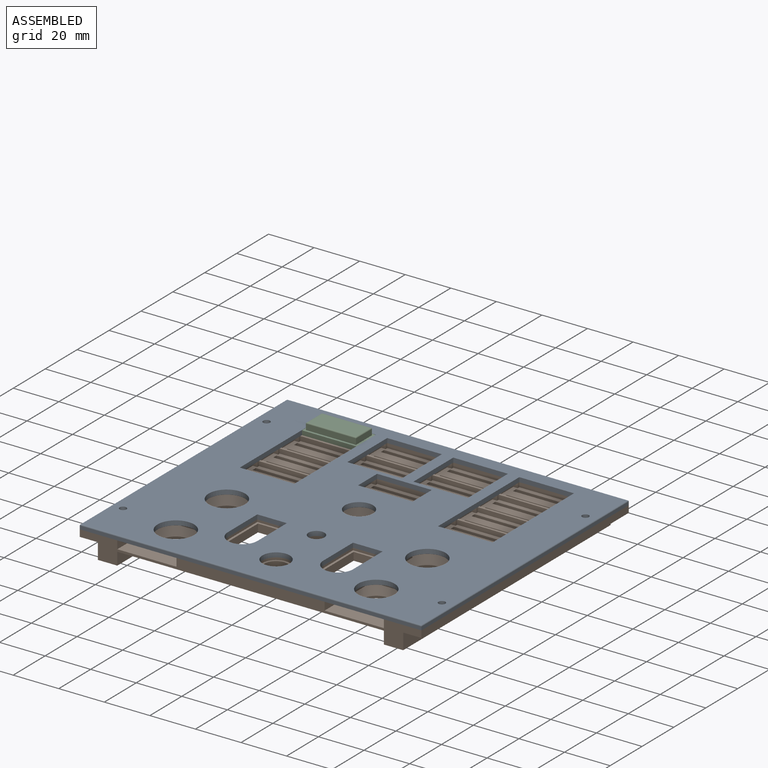
[diagram: assembled view]
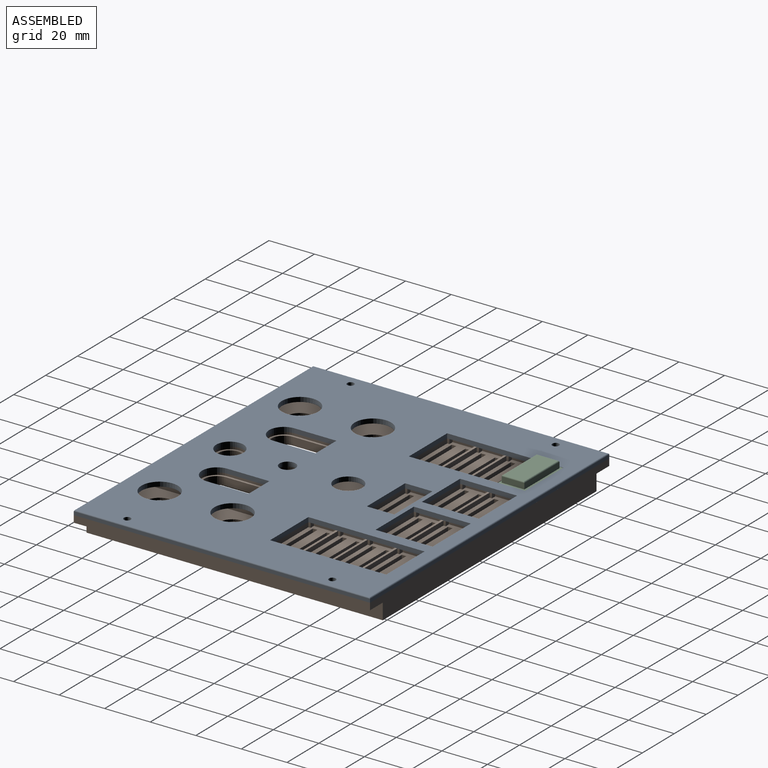
[diagram: assembled view, second angle]
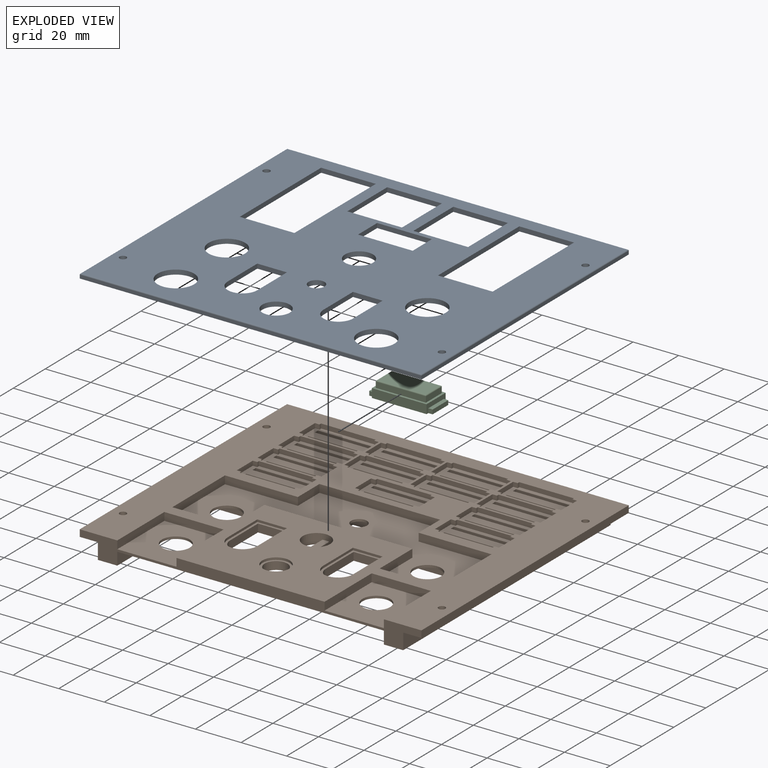
[diagram: exploded view]
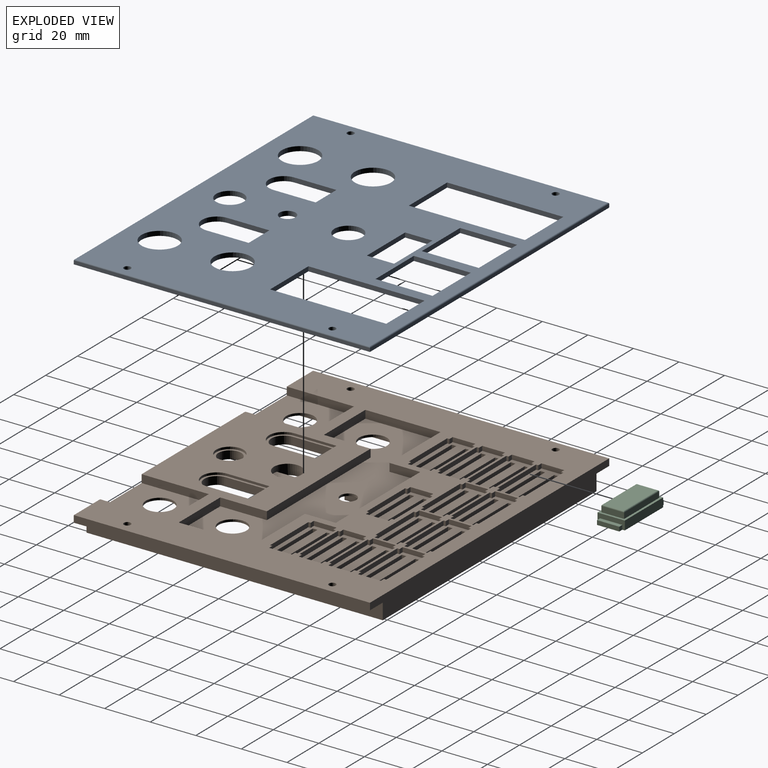
[diagram: exploded view, second angle]
ASSEMBLY  parts=3 mates=2
PART A: 49 faces, bbox 150x130x2 mm
  f0: plane 130x1.5mm, normal (1,0,0), area 195mm2, adj f1,f42,f44,f46
  f1: plane 150x1.5mm, normal (0,1,0), area 225mm2, adj f0,f2,f44,f45
  f2: plane 130x1.5mm, normal (-1,0,0), area 195mm2, adj f1,f42,f44,f47
  f3: cylinder r=6.5mm len=13mm, axis (0,0,-1), area 40.8mm2, adj f4,f24,f43,f44
  f4: plane 18.5x2mm, normal (1,0,0), area 37mm2, adj f3,f5,f43,f44
  f5: plane 13x2mm, normal (0,-1,0), area 26mm2, adj f4,f24,f43,f44
  f6: cylinder r=6.5mm len=13mm, axis (0,0,-1), area 40.8mm2, adj f7,f25,f43,f44
  f7: plane 18.5x2mm, normal (1,0,0), area 37mm2, adj f6,f8,f43,f44
  f8: plane 13x2mm, normal (0,-1,0), area 26mm2, adj f7,f25,f43,f44
  f9: plane 24x2mm, normal (0,-1,0), area 48mm2, adj f10,f26,f43,f44
  f10: plane 51x2mm, normal (-1,0,0), area 102mm2, adj f9,f11,f43,f44
  f11: plane 24x2mm, normal (0,1,0), area 48mm2, adj f10,f26,f43,f44
  f12: plane 24x2mm, normal (0,1,0), area 48mm2, adj f13,f38,f43,f44
  f13: plane 25x2mm, normal (1,0,0), area 50mm2, adj f12,f14,f43,f44
  f14: plane 24x2mm, normal (0,-1,0), area 48mm2, adj f13,f38,f43,f44
  f15: plane 12x2mm, normal (1,0,0), area 24mm2, adj f16,f39,f43,f44
  f16: plane 24x2mm, normal (0,-1,0), area 48mm2, adj f15,f17,f43,f44
  f17: plane 12x2mm, normal (-1,0,0), area 24mm2, adj f16,f39,f43,f44
  f18: plane 24x2mm, normal (0,1,0), area 48mm2, adj f19,f40,f43,f44
  f19: plane 25x2mm, normal (1,0,0), area 50mm2, adj f18,f20,f43,f44
  f20: plane 24x2mm, normal (0,-1,0), area 48mm2, adj f19,f40,f43,f44
  f21: plane 51x2mm, normal (1,0,0), area 102mm2, adj f22,f41,f43,f44
  f22: plane 24x2mm, normal (0,-1,0), area 48mm2, adj f21,f23,f43,f44
  f23: plane 51x2mm, normal (-1,0,0), area 102mm2, adj f22,f41,f43,f44
  f24: plane 18.5x2mm, normal (-1,0,0), area 37mm2, adj f3,f5,f43,f44
  f25: plane 18.5x2mm, normal (-1,0,0), area 37mm2, adj f6,f8,f43,f44
  f26: plane 51x2mm, normal (1,0,0), area 102mm2, adj f9,f11,f43,f44
  f27: cylinder r=6mm len=12mm, axis (0,0,-1), area 75.4mm2, adj f43,f44
  f28: cylinder r=3.5mm len=7mm, axis (0,0,-1), area 44mm2, adj f43,f44
  f29: cylinder r=8mm len=16mm, axis (0,0,-1), area 100.5mm2, adj f43,f44
  f30: cylinder r=8mm len=16mm, axis (0,0,-1), area 100.5mm2, adj f43,f44
  f31: cylinder r=8mm len=16mm, axis (0,0,-1), area 100.5mm2, adj f43,f44
  f32: cylinder r=8mm len=16mm, axis (0,0,-1), area 100.5mm2, adj f43,f44
  f33: cylinder r=1.5mm len=3mm, axis (0,0,-1), area 18.8mm2, adj f43,f44
  f34: cylinder r=1.5mm len=3mm, axis (0,0,-1), area 18.8mm2, adj f43,f44
  f35: cylinder r=1.5mm len=3mm, axis (0,0,-1), area 18.8mm2, adj f43,f44
  f36: cylinder r=1.5mm len=3mm, axis (0,0,-1), area 18.8mm2, adj f43,f44
  f37: cylinder r=6.15mm len=12.3mm, axis (0,0,-1), area 77.3mm2, adj f43,f44
  f38: plane 25x2mm, normal (-1,0,0), area 50mm2, adj f12,f14,f43,f44
  f39: plane 24x2mm, normal (0,1,0), area 48mm2, adj f15,f17,f43,f44
  f40: plane 25x2mm, normal (-1,0,0), area 50mm2, adj f18,f20,f43,f44
  f41: plane 24x2mm, normal (0,1,0), area 48mm2, adj f21,f23,f43,f44
  f42: plane 150x1.5mm, normal (0,-1,0), area 225mm2, adj f0,f2,f44,f48
  f43: plane 149x129mm, normal (0,0,1), area 13568.3mm2, adj f3,f4,f5,f6,f7,f8,f9,f10
  f44: plane 150x130mm, normal (0,0,-1), area 13847.3mm2, adj f0,f1,f2,f3,f4,f5,f6,f7
  f45: cylinder r=0.5mm len=150mm, axis (1,0,0), area 117.5mm2, adj f1,f43,f46,f47
  f46: cylinder r=0.5mm len=130mm, axis (0,-1,0), area 101.8mm2, adj f0,f43,f45,f48
  f47: cylinder r=0.5mm len=130mm, axis (0,1,0), area 101.8mm2, adj f2,f43,f45,f48
  f48: cylinder r=0.5mm len=150mm, axis (-1,0,0), area 117.5mm2, adj f42,f43,f46,f47
PART B: 355 faces, bbox 150x130x10 mm
  f0: plane 134x130mm, normal (0,0,-1), area 3789.5mm2, adj f15,f23,f39,f41,f215,f216,f217,f218
  f1: plane 28x12mm, normal (0,0,1), area 232mm2, adj f80,f81,f82,f83,f84,f85,f86,f87
  f2: plane 28x12mm, normal (0,0,1), area 232mm2, adj f92,f93,f94,f95,f96,f97,f98,f99
  f3: plane 28x12mm, normal (0,0,1), area 232mm2, adj f104,f105,f106,f107,f108,f109,f110,f111
  f4: plane 28x12mm, normal (0,0,1), area 232mm2, adj f116,f117,f118,f119,f120,f121,f122,f123
  f5: plane 28x12mm, normal (0,0,1), area 232mm2, adj f167,f168,f169,f170,f171,f172,f173,f174
  f6: plane 28x12mm, normal (0,0,1), area 232mm2, adj f179,f180,f181,f182,f183,f184,f185,f186
  f7: plane 28x12mm, normal (0,0,1), area 232mm2, adj f191,f192,f193,f194,f195,f196,f197,f198
  f8: plane 28x12mm, normal (0,0,1), area 232mm2, adj f203,f204,f205,f206,f207,f208,f209,f210
  f9: plane 117x46.5mm, normal (0,0,1), area 2971.7mm2, adj f16,f18,f20,f43,f44,f45,f46,f47
  f10: plane 29.5x3.5mm, normal (1,0,0), area 103.3mm2, adj f13,f15,f38,f238
  f11: plane 29.5x3.5mm, normal (-1,0,0), area 103.3mm2, adj f13,f15,f38,f238
  f12: plane 29.5x3.5mm, normal (-1,0,0), area 103.3mm2, adj f15,f38,f53,f236
  f13: plane 29.5x26mm, normal (0,0,1), area 650.1mm2, adj f10,f11,f15,f19,f238
  f14: plane 29.5x3.5mm, normal (1,0,0), area 103.3mm2, adj f15,f38,f53,f236
  f15: plane 150x10mm, normal (0,-1,0), area 562.5mm2, adj f0,f10,f11,f12,f13,f14,f21,f22
  f16: cylinder r=6.1mm len=12.2mm, axis (0,0,-1), area 38.3mm2, adj f9,f222
  f17: cylinder r=6.1mm len=12.2mm, axis (0,0,-1), area 38.3mm2, adj f53,f222
  f18: cylinder r=6.1mm len=12.2mm, axis (0,0,-1), area 38.3mm2, adj f9,f222
  f19: cylinder r=6.1mm len=12.2mm, axis (0,0,-1), area 38.3mm2, adj f13,f222
  f20: cylinder r=3.5mm len=7mm, axis (0,0,-1), area 22mm2, adj f9,f222
  f21: plane 130x3mm, normal (1,0,0), area 390mm2, adj f15,f23,f38,f40
  f22: plane 130x3mm, normal (-1,0,0), area 390mm2, adj f15,f23,f38,f42
  f23: plane 150x10mm, normal (0,1,0), area 1388mm2, adj f0,f21,f22,f38,f39,f40,f41,f42
  f24: cylinder r=1.5mm len=3mm, axis (0,0,-1), area 28.3mm2, adj f38,f42
  f25: cylinder r=1.5mm len=3mm, axis (0,0,-1), area 28.3mm2, adj f38,f42
  f26: cylinder r=6.5mm len=13mm, axis (0,0,-1), area 20.4mm2, adj f27,f32,f38,f227
  f27: plane 18.5x1mm, normal (1,0,0), area 18.5mm2, adj f26,f28,f38,f227
  f28: plane 13x1mm, normal (0,-1,0), area 13mm2, adj f27,f32,f38,f227
  f29: cylinder r=6.5mm len=13mm, axis (0,0,-1), area 20.4mm2, adj f30,f33,f38,f232
  f30: plane 18.5x1mm, normal (1,0,0), area 18.5mm2, adj f29,f31,f38,f232
  f31: plane 13x1mm, normal (0,-1,0), area 13mm2, adj f30,f33,f38,f232
  f32: plane 18.5x1mm, normal (-1,0,0), area 18.5mm2, adj f26,f28,f38,f227
  f33: plane 18.5x1mm, normal (-1,0,0), area 18.5mm2, adj f29,f31,f38,f232
  f34: cylinder r=6mm len=12mm, axis (0,0,-1), area 37.7mm2, adj f38,f234
  f35: cylinder r=6mm len=12mm, axis (0,0,-1), area 157.5mm2, adj f38,f222,f352,f353,f354
  f36: cylinder r=1.5mm len=3mm, axis (0,0,-1), area 28.3mm2, adj f38,f40
  f37: cylinder r=1.5mm len=3mm, axis (0,0,-1), area 28.3mm2, adj f38,f40
  f38: plane 150x130mm, normal (0,0,1), area 9589.8mm2, adj f10,f11,f12,f14,f15,f21,f22,f23
  f39: plane 130x7mm, normal (1,0,0), area 910mm2, adj f0,f15,f23,f40
  f40: plane 130x8mm, normal (0,0,-1), area 1025.9mm2, adj f15,f21,f23,f36,f37,f39
  f41: plane 130x7mm, normal (-1,0,0), area 910mm2, adj f0,f15,f23,f42
  f42: plane 130x8mm, normal (0,0,-1), area 1025.9mm2, adj f15,f22,f23,f24,f25,f41
  f43: plane 65x3.5mm, normal (0,1,0), area 227.5mm2, adj f9,f38,f44,f52
  f44: plane 20.5x3.5mm, normal (1,0,0), area 71.8mm2, adj f9,f38,f43,f237
  f45: plane 33x3.5mm, normal (-1,0,0), area 115.5mm2, adj f9,f38,f46,f237
  f46: plane 32x3.5mm, normal (0,-1,0), area 112mm2, adj f9,f38,f45,f47
  f47: plane 13.5x3.5mm, normal (-1,0,0), area 47.2mm2, adj f9,f38,f46,f48
  f48: plane 53x3.5mm, normal (0,-1,0), area 185.5mm2, adj f9,f38,f47,f49
  f49: plane 13.5x3.5mm, normal (1,0,0), area 47.2mm2, adj f9,f38,f48,f50
  f50: plane 32x3.5mm, normal (0,-1,0), area 112mm2, adj f9,f38,f49,f51
  f51: plane 33x3.5mm, normal (1,0,0), area 115.5mm2, adj f9,f38,f50,f235
  f52: plane 20.5x3.5mm, normal (-1,0,0), area 71.8mm2, adj f9,f38,f43,f235
  f53: plane 29.5x26mm, normal (0,0,1), area 650.1mm2, adj f12,f14,f15,f17,f236
  f54: plane 2x1mm, normal (1,0,0), area 2mm2, adj f38,f55,f65,f66
  f55: plane 2x2mm, normal (0,-1,0), area 4mm2, adj f38,f54,f56,f66
  f56: plane 10x2mm, normal (1,0,0), area 20mm2, adj f38,f55,f57,f66
  f57: plane 2x2mm, normal (0,1,0), area 4mm2, adj f38,f56,f58,f66
  f58: plane 2x1mm, normal (1,0,0), area 2mm2, adj f38,f57,f59,f66
  f59: plane 24x2mm, normal (0,1,0), area 48mm2, adj f38,f58,f60,f66
  f60: plane 2x1mm, normal (-1,0,0), area 2mm2, adj f38,f59,f61,f66
  f61: plane 2x2mm, normal (0,1,0), area 4mm2, adj f38,f60,f62,f66
  f62: plane 10x2mm, normal (-1,0,0), area 20mm2, adj f38,f61,f63,f66
  f63: plane 2x2mm, normal (0,-1,0), area 4mm2, adj f38,f62,f64,f66
  f64: plane 2x1mm, normal (-1,0,0), area 2mm2, adj f38,f63,f65,f66
  f65: plane 24x2mm, normal (0,-1,0), area 48mm2, adj f38,f54,f64,f66
  f66: plane 28x12mm, normal (0,0,1), area 232mm2, adj f54,f55,f56,f57,f58,f59,f60,f61
  f67: plane 2x2mm, normal (0,1,0), area 4mm2, adj f38,f68,f78,f79
  f68: plane 2x1mm, normal (1,0,0), area 2mm2, adj f38,f67,f69,f79
  f69: plane 24x2mm, normal (0,1,0), area 48mm2, adj f38,f68,f70,f79
  f70: plane 2x1mm, normal (-1,0,0), area 2mm2, adj f38,f69,f71,f79
  f71: plane 2x2mm, normal (0,1,0), area 4mm2, adj f38,f70,f72,f79
  f72: plane 10x2mm, normal (-1,0,0), area 20mm2, adj f38,f71,f73,f79
  f73: plane 2x2mm, normal (0,-1,0), area 4mm2, adj f38,f72,f74,f79
  f74: plane 2x1mm, normal (-1,0,0), area 2mm2, adj f38,f73,f75,f79
  f75: plane 24x2mm, normal (0,-1,0), area 48mm2, adj f38,f74,f76,f79
  f76: plane 2x1mm, normal (1,0,0), area 2mm2, adj f38,f75,f77,f79
  f77: plane 2x2mm, normal (0,-1,0), area 4mm2, adj f38,f76,f78,f79
  f78: plane 10x2mm, normal (1,0,0), area 20mm2, adj f38,f67,f77,f79
  f79: plane 28x12mm, normal (0,0,1), area 232mm2, adj f67,f68,f69,f70,f71,f72,f73,f74
  f80: plane 2x2mm, normal (0,1,0), area 4mm2, adj f1,f38,f81,f91
  f81: plane 2x1mm, normal (1,0,0), area 2mm2, adj f1,f38,f80,f82
  f82: plane 24x2mm, normal (0,1,0), area 48mm2, adj f1,f38,f81,f83
  f83: plane 2x1mm, normal (-1,0,0), area 2mm2, adj f1,f38,f82,f84
  f84: plane 2x2mm, normal (0,1,0), area 4mm2, adj f1,f38,f83,f85
  f85: plane 10x2mm, normal (-1,0,0), area 20mm2, adj f1,f38,f84,f86
  f86: plane 2x2mm, normal (0,-1,0), area 4mm2, adj f1,f38,f85,f87
  f87: plane 2x1mm, normal (-1,0,0), area 2mm2, adj f1,f38,f86,f88
  f88: plane 24x2mm, normal (0,-1,0), area 48mm2, adj f1,f38,f87,f89
  f89: plane 2x1mm, normal (1,0,0), area 2mm2, adj f1,f38,f88,f90
  f90: plane 2x2mm, normal (0,-1,0), area 4mm2, adj f1,f38,f89,f91
  f91: plane 10x2mm, normal (1,0,0), area 20mm2, adj f1,f38,f80,f90
  f92: plane 2x2mm, normal (0,-1,0), area 4mm2, adj f2,f38,f93,f103
  f93: plane 2x1mm, normal (-1,0,0), area 2mm2, adj f2,f38,f92,f94
  f94: plane 24x2mm, normal (0,-1,0), area 48mm2, adj f2,f38,f93,f95
  f95: plane 2x1mm, normal (1,0,0), area 2mm2, adj f2,f38,f94,f96
  f96: plane 2x2mm, normal (0,-1,0), area 4mm2, adj f2,f38,f95,f97
  f97: plane 10x2mm, normal (1,0,0), area 20mm2, adj f2,f38,f96,f98
  f98: plane 2x2mm, normal (0,1,0), area 4mm2, adj f2,f38,f97,f99
  f99: plane 2x1mm, normal (1,0,0), area 2mm2, adj f2,f38,f98,f100
  f100: plane 24x2mm, normal (0,1,0), area 48mm2, adj f2,f38,f99,f101
  f101: plane 2x1mm, normal (-1,0,0), area 2mm2, adj f2,f38,f100,f102
  f102: plane 2x2mm, normal (0,1,0), area 4mm2, adj f2,f38,f101,f103
  f103: plane 10x2mm, normal (-1,0,0), area 20mm2, adj f2,f38,f92,f102
  f104: plane 2x2mm, normal (0,1,0), area 4mm2, adj f3,f38,f105,f115
  f105: plane 2x1mm, normal (1,0,0), area 2mm2, adj f3,f38,f104,f106
  f106: plane 24x2mm, normal (0,1,0), area 48mm2, adj f3,f38,f105,f107
  f107: plane 2x1mm, normal (-1,0,0), area 2mm2, adj f3,f38,f106,f108
  f108: plane 2x2mm, normal (0,1,0), area 4mm2, adj f3,f38,f107,f109
  f109: plane 10x2mm, normal (-1,0,0), area 20mm2, adj f3,f38,f108,f110
  f110: plane 2x2mm, normal (0,-1,0), area 4mm2, adj f3,f38,f109,f111
  f111: plane 2x1mm, normal (-1,0,0), area 2mm2, adj f3,f38,f110,f112
  f112: plane 24x2mm, normal (0,-1,0), area 48mm2, adj f3,f38,f111,f113
  f113: plane 2x1mm, normal (1,0,0), area 2mm2, adj f3,f38,f112,f114
  f114: plane 2x2mm, normal (0,-1,0), area 4mm2, adj f3,f38,f113,f115
  f115: plane 10x2mm, normal (1,0,0), area 20mm2, adj f3,f38,f104,f114
  f116: plane 2x2mm, normal (0,1,0), area 4mm2, adj f4,f38,f117,f127
  f117: plane 2x1mm, normal (1,0,0), area 2mm2, adj f4,f38,f116,f118
  f118: plane 24x2mm, normal (0,1,0), area 48mm2, adj f4,f38,f117,f119
  f119: plane 2x1mm, normal (-1,0,0), area 2mm2, adj f4,f38,f118,f120
  f120: plane 2x2mm, normal (0,1,0), area 4mm2, adj f4,f38,f119,f121
  f121: plane 10x2mm, normal (-1,0,0), area 20mm2, adj f4,f38,f120,f122
  f122: plane 2x2mm, normal (0,-1,0), area 4mm2, adj f4,f38,f121,f123
  f123: plane 2x1mm, normal (-1,0,0), area 2mm2, adj f4,f38,f122,f124
  f124: plane 24x2mm, normal (0,-1,0), area 48mm2, adj f4,f38,f123,f125
  f125: plane 2x1mm, normal (1,0,0), area 2mm2, adj f4,f38,f124,f126
  f126: plane 2x2mm, normal (0,-1,0), area 4mm2, adj f4,f38,f125,f127
  f127: plane 10x2mm, normal (1,0,0), area 20mm2, adj f4,f38,f116,f126
  f128: plane 2x2mm, normal (0,1,0), area 4mm2, adj f38,f129,f139,f140
  f129: plane 2x1mm, normal (1,0,0), area 2mm2, adj f38,f128,f130,f140
  f130: plane 24x2mm, normal (0,1,0), area 48mm2, adj f38,f129,f131,f140
  f131: plane 2x1mm, normal (-1,0,0), area 2mm2, adj f38,f130,f132,f140
  f132: plane 2x2mm, normal (0,1,0), area 4mm2, adj f38,f131,f133,f140
  f133: plane 10x2mm, normal (-1,0,0), area 20mm2, adj f38,f132,f134,f140
  f134: plane 2x2mm, normal (0,-1,0), area 4mm2, adj f38,f133,f135,f140
  f135: plane 2x1mm, normal (-1,0,0), area 2mm2, adj f38,f134,f136,f140
  f136: plane 24x2mm, normal (0,-1,0), area 48mm2, adj f38,f135,f137,f140
  f137: plane 2x1mm, normal (1,0,0), area 2mm2, adj f38,f136,f138,f140
  f138: plane 2x2mm, normal (0,-1,0), area 4mm2, adj f38,f137,f139,f140
  f139: plane 10x2mm, normal (1,0,0), area 20mm2, adj f38,f128,f138,f140
  f140: plane 28x12mm, normal (0,0,1), area 232mm2, adj f128,f129,f130,f131,f132,f133,f134,f135
  f141: plane 2x2mm, normal (0,1,0), area 4mm2, adj f38,f142,f152,f153
  f142: plane 2x1mm, normal (1,0,0), area 2mm2, adj f38,f141,f143,f153
  f143: plane 24x2mm, normal (0,1,0), area 48mm2, adj f38,f142,f144,f153
  f144: plane 2x1mm, normal (-1,0,0), area 2mm2, adj f38,f143,f145,f153
  f145: plane 2x2mm, normal (0,1,0), area 4mm2, adj f38,f144,f146,f153
  f146: plane 10x2mm, normal (-1,0,0), area 20mm2, adj f38,f145,f147,f153
  f147: plane 2x2mm, normal (0,-1,0), area 4mm2, adj f38,f146,f148,f153
  f148: plane 2x1mm, normal (-1,0,0), area 2mm2, adj f38,f147,f149,f153
  f149: plane 24x2mm, normal (0,-1,0), area 48mm2, adj f38,f148,f150,f153
  f150: plane 2x1mm, normal (1,0,0), area 2mm2, adj f38,f149,f151,f153
  f151: plane 2x2mm, normal (0,-1,0), area 4mm2, adj f38,f150,f152,f153
  f152: plane 10x2mm, normal (1,0,0), area 20mm2, adj f38,f141,f151,f153
  f153: plane 28x12mm, normal (0,0,1), area 232mm2, adj f141,f142,f143,f144,f145,f146,f147,f148
  f154: plane 2x2mm, normal (0,1,0), area 4mm2, adj f38,f155,f165,f166
  f155: plane 2x1mm, normal (1,0,0), area 2mm2, adj f38,f154,f156,f166
  f156: plane 24x2mm, normal (0,1,0), area 48mm2, adj f38,f155,f157,f166
  f157: plane 2x1mm, normal (-1,0,0), area 2mm2, adj f38,f156,f158,f166
  f158: plane 2x2mm, normal (0,1,0), area 4mm2, adj f38,f157,f159,f166
  f159: plane 10x2mm, normal (-1,0,0), area 20mm2, adj f38,f158,f160,f166
  f160: plane 2x2mm, normal (0,-1,0), area 4mm2, adj f38,f159,f161,f166
  f161: plane 2x1mm, normal (-1,0,0), area 2mm2, adj f38,f160,f162,f166
  f162: plane 24x2mm, normal (0,-1,0), area 48mm2, adj f38,f161,f163,f166
  f163: plane 2x1mm, normal (1,0,0), area 2mm2, adj f38,f162,f164,f166
  f164: plane 2x2mm, normal (0,-1,0), area 4mm2, adj f38,f163,f165,f166
  f165: plane 10x2mm, normal (1,0,0), area 20mm2, adj f38,f154,f164,f166
  f166: plane 28x12mm, normal (0,0,1), area 232mm2, adj f154,f155,f156,f157,f158,f159,f160,f161
  f167: plane 2x2mm, normal (0,1,0), area 4mm2, adj f5,f38,f168,f178
  f168: plane 2x1mm, normal (1,0,0), area 2mm2, adj f5,f38,f167,f169
  f169: plane 24x2mm, normal (0,1,0), area 48mm2, adj f5,f38,f168,f170
  f170: plane 2x1mm, normal (-1,0,0), area 2mm2, adj f5,f38,f169,f171
  f171: plane 2x2mm, normal (0,1,0), area 4mm2, adj f5,f38,f170,f172
  f172: plane 10x2mm, normal (-1,0,0), area 20mm2, adj f5,f38,f171,f173
  f173: plane 2x2mm, normal (0,-1,0), area 4mm2, adj f5,f38,f172,f174
  f174: plane 2x1mm, normal (-1,0,0), area 2mm2, adj f5,f38,f173,f175
  f175: plane 24x2mm, normal (0,-1,0), area 48mm2, adj f5,f38,f174,f176
  f176: plane 2x1mm, normal (1,0,0), area 2mm2, adj f5,f38,f175,f177
  f177: plane 2x2mm, normal (0,-1,0), area 4mm2, adj f5,f38,f176,f178
  f178: plane 10x2mm, normal (1,0,0), area 20mm2, adj f5,f38,f167,f177
  f179: plane 2x2mm, normal (0,-1,0), area 4mm2, adj f6,f38,f180,f190
  f180: plane 2x1mm, normal (-1,0,0), area 2mm2, adj f6,f38,f179,f181
  f181: plane 24x2mm, normal (0,-1,0), area 48mm2, adj f6,f38,f180,f182
  f182: plane 2x1mm, normal (1,0,0), area 2mm2, adj f6,f38,f181,f183
  f183: plane 2x2mm, normal (0,-1,0), area 4mm2, adj f6,f38,f182,f184
  f184: plane 10x2mm, normal (1,0,0), area 20mm2, adj f6,f38,f183,f185
  f185: plane 2x2mm, normal (0,1,0), area 4mm2, adj f6,f38,f184,f186
  f186: plane 2x1mm, normal (1,0,0), area 2mm2, adj f6,f38,f185,f187
  f187: plane 24x2mm, normal (0,1,0), area 48mm2, adj f6,f38,f186,f188
  f188: plane 2x1mm, normal (-1,0,0), area 2mm2, adj f6,f38,f187,f189
  f189: plane 2x2mm, normal (0,1,0), area 4mm2, adj f6,f38,f188,f190
  f190: plane 10x2mm, normal (-1,0,0), area 20mm2, adj f6,f38,f179,f189
  f191: plane 2x2mm, normal (0,1,0), area 4mm2, adj f7,f38,f192,f202
  f192: plane 2x1mm, normal (1,0,0), area 2mm2, adj f7,f38,f191,f193
  f193: plane 24x2mm, normal (0,1,0), area 48mm2, adj f7,f38,f192,f194
  f194: plane 2x1mm, normal (-1,0,0), area 2mm2, adj f7,f38,f193,f195
  f195: plane 2x2mm, normal (0,1,0), area 4mm2, adj f7,f38,f194,f196
  f196: plane 10x2mm, normal (-1,0,0), area 20mm2, adj f7,f38,f195,f197
  f197: plane 2x2mm, normal (0,-1,0), area 4mm2, adj f7,f38,f196,f198
  f198: plane 2x1mm, normal (-1,0,0), area 2mm2, adj f7,f38,f197,f199
  f199: plane 24x2mm, normal (0,-1,0), area 48mm2, adj f7,f38,f198,f200
  f200: plane 2x1mm, normal (1,0,0), area 2mm2, adj f7,f38,f199,f201
  f201: plane 2x2mm, normal (0,-1,0), area 4mm2, adj f7,f38,f200,f202
  f202: plane 10x2mm, normal (1,0,0), area 20mm2, adj f7,f38,f191,f201
  f203: plane 2x2mm, normal (0,-1,0), area 4mm2, adj f8,f38,f204,f214
  f204: plane 2x1mm, normal (-1,0,0), area 2mm2, adj f8,f38,f203,f205
  f205: plane 24x2mm, normal (0,-1,0), area 48mm2, adj f8,f38,f204,f206
  f206: plane 2x1mm, normal (1,0,0), area 2mm2, adj f8,f38,f205,f207
  f207: plane 2x2mm, normal (0,-1,0), area 4mm2, adj f8,f38,f206,f208
  f208: plane 10x2mm, normal (1,0,0), area 20mm2, adj f8,f38,f207,f209
  f209: plane 2x2mm, normal (0,1,0), area 4mm2, adj f8,f38,f208,f210
  f210: plane 2x1mm, normal (1,0,0), area 2mm2, adj f8,f38,f209,f211
  f211: plane 24x2mm, normal (0,1,0), area 48mm2, adj f8,f38,f210,f212
  f212: plane 2x1mm, normal (-1,0,0), area 2mm2, adj f8,f38,f211,f213
  f213: plane 2x2mm, normal (0,1,0), area 4mm2, adj f8,f38,f212,f214
  f214: plane 10x2mm, normal (-1,0,0), area 20mm2, adj f8,f38,f203,f213
  f215: plane 49.5x5.5mm, normal (0,-1,0), area 272.2mm2, adj f0,f216,f221,f222
  f216: plane 17x5.5mm, normal (-1,0,0), area 93.5mm2, adj f0,f215,f217,f222
  f217: plane 18x5.5mm, normal (0,-1,0), area 99mm2, adj f0,f216,f218,f222
  f218: plane 17x5.5mm, normal (1,0,0), area 93.5mm2, adj f0,f217,f219,f222
  f219: plane 49.5x5.5mm, normal (0,-1,0), area 272.2mm2, adj f0,f218,f220,f222
  f220: plane 60x5.5mm, normal (1,0,0), area 330mm2, adj f0,f15,f219,f222
  f221: plane 60x5.5mm, normal (-1,0,0), area 330mm2, adj f0,f15,f215,f222
  f222: plane 117x77mm, normal (0,0,-1), area 6183.9mm2, adj f15,f16,f17,f18,f19,f20,f35,f215
  f223: cylinder r=5.5mm len=11mm, axis (0,0,-1), area 60.5mm2, adj f222,f224,f226,f227
  f224: plane 17.5x3.5mm, normal (-1,0,0), area 61.3mm2, adj f222,f223,f225,f227
  f225: plane 11x3.5mm, normal (0,-1,0), area 38.5mm2, adj f222,f224,f226,f227
  f226: plane 17.5x3.5mm, normal (1,0,0), area 61.3mm2, adj f222,f223,f225,f227
  f227: plane 25x13mm, normal (0,0,1), area 66.8mm2, adj f26,f27,f28,f32,f223,f224,f225,f226
  f228: cylinder r=5.5mm len=11mm, axis (0,0,-1), area 60.5mm2, adj f222,f229,f231,f232
  f229: plane 17.5x3.5mm, normal (-1,0,0), area 61.3mm2, adj f222,f228,f230,f232
  f230: plane 11x3.5mm, normal (0,-1,0), area 38.5mm2, adj f222,f229,f231,f232
  f231: plane 17.5x3.5mm, normal (1,0,0), area 61.3mm2, adj f222,f228,f230,f232
  f232: plane 25x13mm, normal (0,0,1), area 66.8mm2, adj f29,f30,f31,f33,f228,f229,f230,f231
  f233: cylinder r=5mm len=10mm, axis (0,0,-1), area 110mm2, adj f222,f234
  f234: plane 12x12mm, normal (0,0,1), area 34.6mm2, adj f34,f233
  f235: plane 26x3.5mm, normal (0,1,0), area 91mm2, adj f9,f38,f51,f52
  f236: plane 26x3.5mm, normal (0,-1,0), area 91mm2, adj f12,f14,f38,f53
  f237: plane 26x3.5mm, normal (0,1,0), area 91mm2, adj f9,f38,f44,f45
  f238: plane 26x3.5mm, normal (0,-1,0), area 91mm2, adj f10,f11,f13,f38
  f239: plane 24x2mm, normal (0,-1,0), area 48mm2, adj f8,f240,f242,f343
  f240: plane 2x2mm, normal (1,0,0), area 4mm2, adj f8,f239,f241,f343
  f241: plane 24x2mm, normal (0,1,0), area 48mm2, adj f8,f240,f242,f343
  f242: plane 2x2mm, normal (-1,0,0), area 4mm2, adj f8,f239,f241,f343
  f243: plane 24x2mm, normal (0,-1,0), area 48mm2, adj f8,f244,f246,f343
  f244: plane 2x2mm, normal (1,0,0), area 4mm2, adj f8,f243,f245,f343
  f245: plane 24x2mm, normal (0,1,0), area 48mm2, adj f8,f244,f246,f343
  f246: plane 2x2mm, normal (-1,0,0), area 4mm2, adj f8,f243,f245,f343
  f247: plane 24x2mm, normal (0,-1,0), area 48mm2, adj f7,f248,f250,f343
  f248: plane 2x2mm, normal (1,0,0), area 4mm2, adj f7,f247,f249,f343
  f249: plane 24x2mm, normal (0,1,0), area 48mm2, adj f7,f248,f250,f343
  f250: plane 2x2mm, normal (-1,0,0), area 4mm2, adj f7,f247,f249,f343
  f251: plane 2x2mm, normal (1,0,0), area 4mm2, adj f7,f252,f254,f343
  f252: plane 24x2mm, normal (0,1,0), area 48mm2, adj f7,f251,f253,f343
  f253: plane 2x2mm, normal (-1,0,0), area 4mm2, adj f7,f252,f254,f343
  f254: plane 24x2mm, normal (0,-1,0), area 48mm2, adj f7,f251,f253,f343
  f255: plane 24x2mm, normal (0,-1,0), area 48mm2, adj f6,f256,f258,f343
  f256: plane 2x2mm, normal (1,0,0), area 4mm2, adj f6,f255,f257,f343
  f257: plane 24x2mm, normal (0,1,0), area 48mm2, adj f6,f256,f258,f343
  f258: plane 2x2mm, normal (-1,0,0), area 4mm2, adj f6,f255,f257,f343
  f259: plane 24x2mm, normal (0,-1,0), area 48mm2, adj f6,f260,f262,f343
  f260: plane 2x2mm, normal (1,0,0), area 4mm2, adj f6,f259,f261,f343
  f261: plane 24x2mm, normal (0,1,0), area 48mm2, adj f6,f260,f262,f343
  f262: plane 2x2mm, normal (-1,0,0), area 4mm2, adj f6,f259,f261,f343
  f263: plane 2x2mm, normal (1,0,0), area 4mm2, adj f5,f264,f266,f343
  f264: plane 24x2mm, normal (0,1,0), area 48mm2, adj f5,f263,f265,f343
  f265: plane 2x2mm, normal (-1,0,0), area 4mm2, adj f5,f264,f266,f343
  f266: plane 24x2mm, normal (0,-1,0), area 48mm2, adj f5,f263,f265,f343
  f267: plane 24x2mm, normal (0,-1,0), area 48mm2, adj f5,f268,f270,f343
  f268: plane 2x2mm, normal (1,0,0), area 4mm2, adj f5,f267,f269,f343
  f269: plane 24x2mm, normal (0,1,0), area 48mm2, adj f5,f268,f270,f343
  f270: plane 2x2mm, normal (-1,0,0), area 4mm2, adj f5,f267,f269,f343
  f271: plane 2x2mm, normal (1,0,0), area 4mm2, adj f166,f272,f274,f343
  f272: plane 24x2mm, normal (0,1,0), area 48mm2, adj f166,f271,f273,f343
  f273: plane 2x2mm, normal (-1,0,0), area 4mm2, adj f166,f272,f274,f343
  f274: plane 24x2mm, normal (0,-1,0), area 48mm2, adj f166,f271,f273,f343
  f275: plane 2x2mm, normal (1,0,0), area 4mm2, adj f166,f276,f278,f343
  f276: plane 24x2mm, normal (0,1,0), area 48mm2, adj f166,f275,f277,f343
  f277: plane 2x2mm, normal (-1,0,0), area 4mm2, adj f166,f276,f278,f343
  f278: plane 24x2mm, normal (0,-1,0), area 48mm2, adj f166,f275,f277,f343
  f279: plane 2x2mm, normal (1,0,0), area 4mm2, adj f153,f280,f282,f343
  f280: plane 24x2mm, normal (0,1,0), area 48mm2, adj f153,f279,f281,f343
  f281: plane 2x2mm, normal (-1,0,0), area 4mm2, adj f153,f280,f282,f343
  f282: plane 24x2mm, normal (0,-1,0), area 48mm2, adj f153,f279,f281,f343
  f283: plane 2x2mm, normal (1,0,0), area 4mm2, adj f153,f284,f286,f343
  f284: plane 24x2mm, normal (0,1,0), area 48mm2, adj f153,f283,f285,f343
  f285: plane 2x2mm, normal (-1,0,0), area 4mm2, adj f153,f284,f286,f343
  f286: plane 24x2mm, normal (0,-1,0), area 48mm2, adj f153,f283,f285,f343
  f287: plane 2x2mm, normal (1,0,0), area 4mm2, adj f140,f288,f290,f343
  f288: plane 24x2mm, normal (0,1,0), area 48mm2, adj f140,f287,f289,f343
  f289: plane 2x2mm, normal (-1,0,0), area 4mm2, adj f140,f288,f290,f343
  f290: plane 24x2mm, normal (0,-1,0), area 48mm2, adj f140,f287,f289,f343
  f291: plane 2x2mm, normal (1,0,0), area 4mm2, adj f140,f292,f294,f343
  f292: plane 24x2mm, normal (0,1,0), area 48mm2, adj f140,f291,f293,f343
  f293: plane 2x2mm, normal (-1,0,0), area 4mm2, adj f140,f292,f294,f343
  f294: plane 24x2mm, normal (0,-1,0), area 48mm2, adj f140,f291,f293,f343
  f295: plane 24x2mm, normal (0,-1,0), area 48mm2, adj f4,f296,f298,f343
  f296: plane 2x2mm, normal (1,0,0), area 4mm2, adj f4,f295,f297,f343
  f297: plane 24x2mm, normal (0,1,0), area 48mm2, adj f4,f296,f298,f343
  f298: plane 2x2mm, normal (-1,0,0), area 4mm2, adj f4,f295,f297,f343
  f299: plane 2x2mm, normal (1,0,0), area 4mm2, adj f4,f300,f302,f343
  f300: plane 24x2mm, normal (0,1,0), area 48mm2, adj f4,f299,f301,f343
  f301: plane 2x2mm, normal (-1,0,0), area 4mm2, adj f4,f300,f302,f343
  f302: plane 24x2mm, normal (0,-1,0), area 48mm2, adj f4,f299,f301,f343
  f303: plane 24x2mm, normal (0,-1,0), area 48mm2, adj f3,f304,f306,f343
  f304: plane 2x2mm, normal (1,0,0), area 4mm2, adj f3,f303,f305,f343
  f305: plane 24x2mm, normal (0,1,0), area 48mm2, adj f3,f304,f306,f343
  f306: plane 2x2mm, normal (-1,0,0), area 4mm2, adj f3,f303,f305,f343
  f307: plane 2x2mm, normal (1,0,0), area 4mm2, adj f3,f308,f310,f343
  f308: plane 24x2mm, normal (0,1,0), area 48mm2, adj f3,f307,f309,f343
  f309: plane 2x2mm, normal (-1,0,0), area 4mm2, adj f3,f308,f310,f343
  f310: plane 24x2mm, normal (0,-1,0), area 48mm2, adj f3,f307,f309,f343
  f311: plane 24x2mm, normal (0,-1,0), area 48mm2, adj f2,f312,f314,f343
  f312: plane 2x2mm, normal (1,0,0), area 4mm2, adj f2,f311,f313,f343
  f313: plane 24x2mm, normal (0,1,0), area 48mm2, adj f2,f312,f314,f343
  f314: plane 2x2mm, normal (-1,0,0), area 4mm2, adj f2,f311,f313,f343
  f315: plane 24x2mm, normal (0,-1,0), area 48mm2, adj f2,f316,f318,f343
  f316: plane 2x2mm, normal (1,0,0), area 4mm2, adj f2,f315,f317,f343
  f317: plane 24x2mm, normal (0,1,0), area 48mm2, adj f2,f316,f318,f343
  f318: plane 2x2mm, normal (-1,0,0), area 4mm2, adj f2,f315,f317,f343
  f319: plane 24x2mm, normal (0,-1,0), area 48mm2, adj f1,f320,f322,f343
  f320: plane 2x2mm, normal (1,0,0), area 4mm2, adj f1,f319,f321,f343
  f321: plane 24x2mm, normal (0,1,0), area 48mm2, adj f1,f320,f322,f343
  f322: plane 2x2mm, normal (-1,0,0), area 4mm2, adj f1,f319,f321,f343
  f323: plane 2x2mm, normal (1,0,0), area 4mm2, adj f1,f324,f326,f343
  f324: plane 24x2mm, normal (0,1,0), area 48mm2, adj f1,f323,f325,f343
  f325: plane 2x2mm, normal (-1,0,0), area 4mm2, adj f1,f324,f326,f343
  f326: plane 24x2mm, normal (0,-1,0), area 48mm2, adj f1,f323,f325,f343
  f327: plane 2x2mm, normal (1,0,0), area 4mm2, adj f79,f328,f330,f343
  f328: plane 24x2mm, normal (0,1,0), area 48mm2, adj f79,f327,f329,f343
  f329: plane 2x2mm, normal (-1,0,0), area 4mm2, adj f79,f328,f330,f343
  f330: plane 24x2mm, normal (0,-1,0), area 48mm2, adj f79,f327,f329,f343
  f331: plane 2x2mm, normal (1,0,0), area 4mm2, adj f79,f332,f334,f343
  f332: plane 24x2mm, normal (0,1,0), area 48mm2, adj f79,f331,f333,f343
  f333: plane 2x2mm, normal (-1,0,0), area 4mm2, adj f79,f332,f334,f343
  f334: plane 24x2mm, normal (0,-1,0), area 48mm2, adj f79,f331,f333,f343
  f335: plane 2x2mm, normal (1,0,0), area 4mm2, adj f66,f336,f338,f343
  f336: plane 24x2mm, normal (0,1,0), area 48mm2, adj f66,f335,f337,f343
  f337: plane 2x2mm, normal (-1,0,0), area 4mm2, adj f66,f336,f338,f343
  f338: plane 24x2mm, normal (0,-1,0), area 48mm2, adj f66,f335,f337,f343
  f339: plane 2x2mm, normal (1,0,0), area 4mm2, adj f66,f340,f342,f343
  f340: plane 24x2mm, normal (0,1,0), area 48mm2, adj f66,f339,f341,f343
  f341: plane 2x2mm, normal (-1,0,0), area 4mm2, adj f66,f340,f342,f343
  f342: plane 24x2mm, normal (0,-1,0), area 48mm2, adj f66,f339,f341,f343
  f343: plane 120x58.5mm, normal (0,0,-1), area 5056.5mm2, adj f239,f240,f241,f242,f243,f244,f245,f246
  f344: plane 13.5x6mm, normal (1,0,0), area 81mm2, adj f0,f343,f345,f351
  f345: plane 33.5x6mm, normal (0,1,0), area 201mm2, adj f0,f343,f344,f346
  f346: plane 58.5x6mm, normal (-1,0,0), area 351mm2, adj f0,f343,f345,f347
  f347: plane 120x6mm, normal (0,-1,0), area 720mm2, adj f0,f343,f346,f348
  f348: plane 58.5x6mm, normal (1,0,0), area 351mm2, adj f0,f343,f347,f349
  f349: plane 33.5x6mm, normal (0,1,0), area 201mm2, adj f0,f343,f348,f350
  f350: plane 13.5x6mm, normal (-1,0,0), area 81mm2, adj f0,f343,f349,f351
  f351: plane 53x6mm, normal (0,1,0), area 318mm2, adj f0,f343,f344,f350
  f352: plane 11.62x2mm, normal (-1,0,0), area 23.2mm2, adj f35,f222,f354
  f353: plane 11.62x2mm, normal (1,0,0), area 23.2mm2, adj f35,f222,f354
  f354: plane 12x3mm, normal (0,0,1), area 35.6mm2, adj f35,f352,f353
PART C: 28 faces, bbox 27.8x12x6.9 mm
  f0: plane 9.8x1.9mm, normal (0,0,1), area 18.6mm2, adj f5,f6,f7,f8
  f1: plane 9.8x1.9mm, normal (0,0,1), area 18.6mm2, adj f2,f3,f10,f11
  f2: plane 1.9x1.9mm, normal (0,-1,0), area 3.6mm2, adj f1,f3,f11,f12
  f3: plane 12x3.9mm, normal (-1,0,0), area 28.2mm2, adj f1,f2,f4,f9,f10,f12,f13
  f4: plane 24x3.9mm, normal (0,-1,0), area 93.6mm2, adj f3,f8,f12,f13
  f5: plane 1.9x1.9mm, normal (0,-1,0), area 3.6mm2, adj f0,f6,f8,f12
  f6: plane 9.8x1.9mm, normal (1,0,0), area 18.6mm2, adj f0,f5,f7,f12
  f7: plane 1.9x1.9mm, normal (0,1,0), area 3.6mm2, adj f0,f6,f8,f12
  f8: plane 12x3.9mm, normal (1,0,0), area 28.2mm2, adj f0,f4,f5,f7,f9,f12,f13
  f9: plane 24x3.9mm, normal (0,1,0), area 93.6mm2, adj f3,f8,f12,f13
  f10: plane 1.9x1.9mm, normal (0,1,0), area 3.6mm2, adj f1,f3,f11,f12
  f11: plane 9.8x1.9mm, normal (-1,0,0), area 18.6mm2, adj f1,f2,f10,f12
  f12: plane 27.8x12mm, normal (0,0,-1), area 105.2mm2, adj f2,f3,f4,f5,f6,f7,f8,f9
  f13: plane 24x12mm, normal (0,0,1), area 68mm2, adj f3,f4,f8,f9,f14,f15,f16,f17
  f14: plane 10x2.5mm, normal (1,0,0), area 25mm2, adj f13,f15,f17,f24
  f15: plane 22x2.5mm, normal (0,1,0), area 55mm2, adj f13,f14,f16,f26
  f16: plane 10x2.5mm, normal (-1,0,0), area 25mm2, adj f13,f15,f17,f27
  f17: plane 22x2.5mm, normal (0,-1,0), area 55mm2, adj f13,f14,f16,f25
  f18: plane 21x9mm, normal (0,0,1), area 189mm2, adj f24,f25,f26,f27
  f19: plane 10x3mm, normal (-1,0,0), area 30mm2, adj f12,f20,f22,f23
  f20: plane 22x3mm, normal (0,1,0), area 66mm2, adj f12,f19,f21,f23
  f21: plane 10x3mm, normal (1,0,0), area 30mm2, adj f12,f20,f22,f23
  f22: plane 22x3mm, normal (0,-1,0), area 66mm2, adj f12,f19,f21,f23
  f23: plane 22x10mm, normal (0,0,-1), area 220mm2, adj f19,f20,f21,f22
  f24: cylinder r=0.5mm len=10mm, axis (0,-1,0), area 7.6mm2, adj f14,f18,f25,f26
  f25: cylinder r=0.5mm len=22mm, axis (-1,0,0), area 17mm2, adj f17,f18,f24,f27
  f26: cylinder r=0.5mm len=22mm, axis (1,0,0), area 17mm2, adj f15,f18,f24,f27
  f27: cylinder r=0.5mm len=10mm, axis (0,1,0), area 7.6mm2, adj f16,f18,f25,f26
PLACE A t=(588.41,-179.42,-67.42)mm
PLACE B t=(239.42,-162.48,-77.42)mm
PLACE C t=(251.1,-217.91,-69.42)mm
MATE fastened C.f12 <-> B.f66  axis (0,0,-1) through (195.92,-109.98,-69.42)mm
MATE fastened A.f35 <-> B.f36  axis (0,0,-1) through (309.42,-117.48,-67.42)mm
